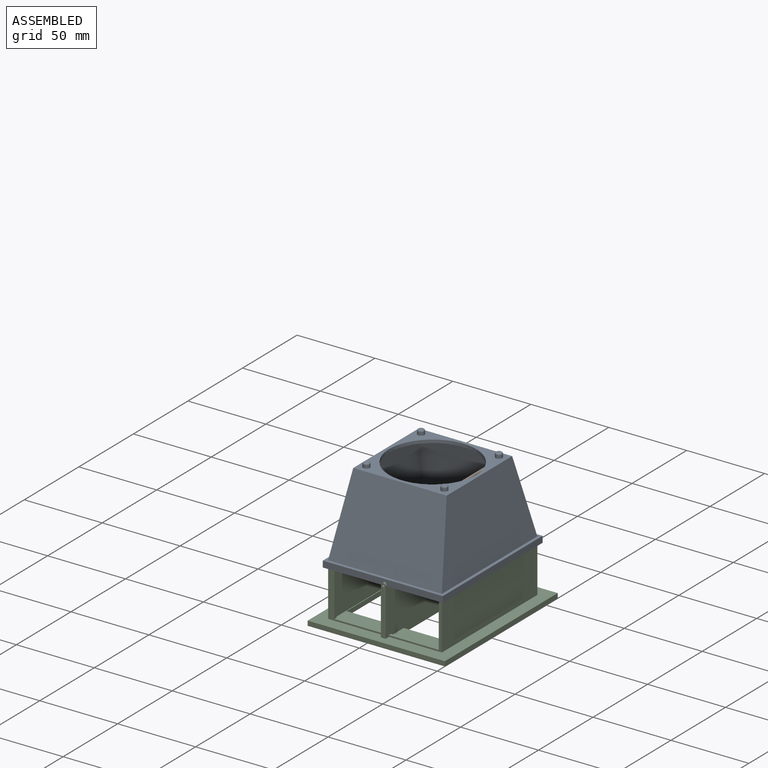
[diagram: assembled view]
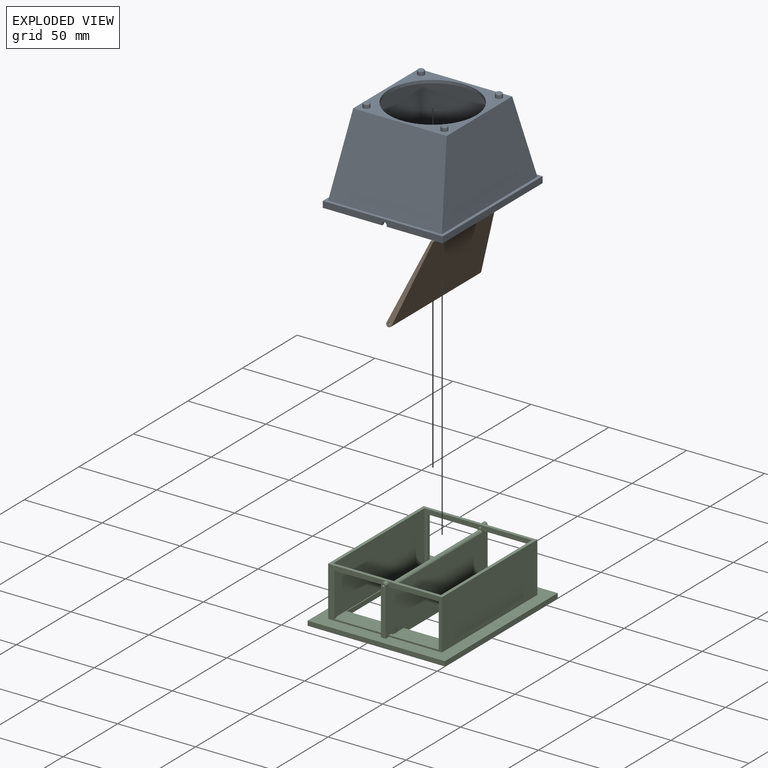
[diagram: exploded view]
GUIDED TOUR — MATED ASSEMBLY (Onshape document 1cd952b16f9e75bab7b66fbf, AutoMate assembly 1cd952b16f9e75bab7b66fbf_637cf7d2d420dbe34865fbb0_53619db082002d376659358c_default)

This assembly has 3 components, labeled P0..P2 below (a component is one placed occurrence of a part; the same part can appear more than once), held together by 2 mates. A mate is a constraint between two components; its type names the relative motion it leaves free:
  FASTENED — locks the two components together rigidly (no relative motion),
  REVOLUTE — leaves rotation about the listed axis free (a hinge).
Axis/direction vectors are unit vectors and 'through' points are millimeter coordinates, both in the assembly's world frame.

MATES
  1. FASTENED "Fastened 1": P2 <-> P0, direction (0.000, 0.000, 1.000) through (-4.52, -101.75, 11.74) mm
  2. REVOLUTE "Revolute 2": P1 <-> P2, axis (0.000, -1.000, 0.000) through (-40.02, -187.25, 10.24) mm

ASSEMBLY ORDER
  1. P2 — the base component [order verified]
  2. P1 [order verified]
  3. P0 [order verified]
Order-tag legend:
  [order verified] — this step's position reverses a verified removal order: the component was checked to insert without passing through the ones already placed.

Of the 3 components, 1 carries the full construction recipe — the FeatureScript program that regenerates the part's solid from scratch; the rest are supplied as boundary geometry only.
Each toured component is shown spotlighted twice — in the assembled view, then in the exploded view, where a leader line traces a displaced component back to its assembled socket (saturated green if recipe-attached, orange if geometry-only; every other component desaturated gray) — followed by its recipe or geometry summary and the mates that hold it.
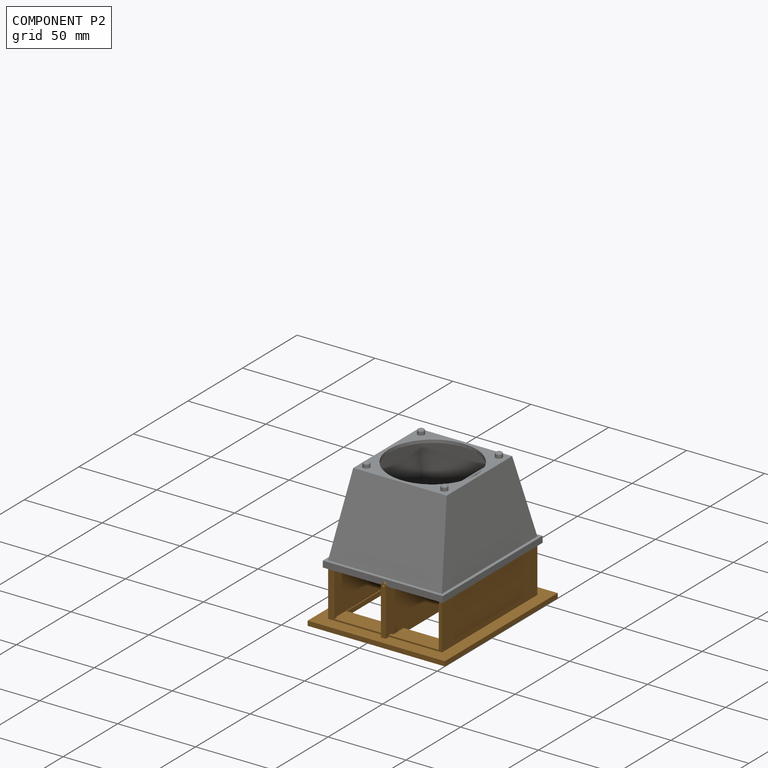
[diagram: component P2 — assembled]
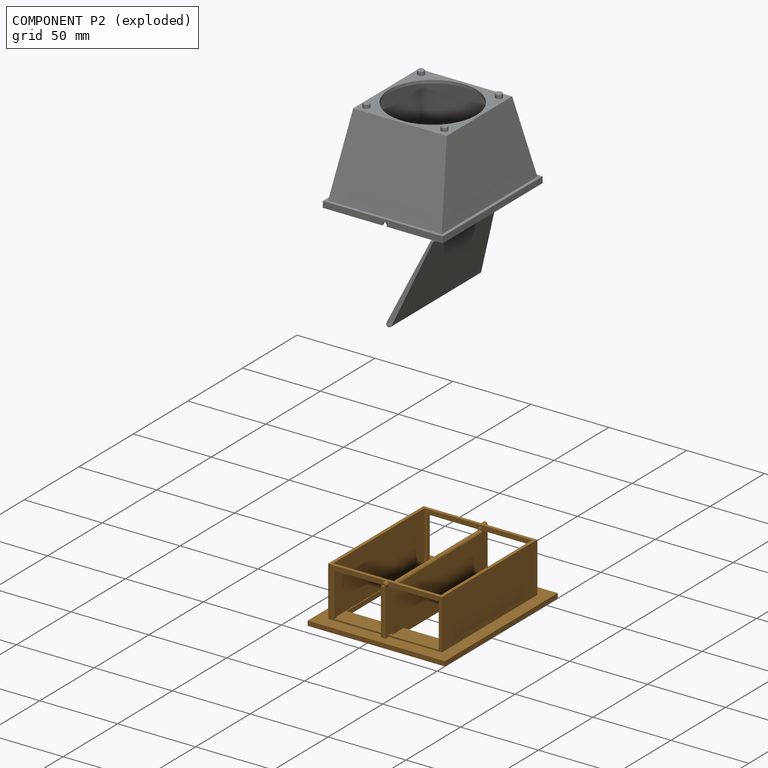
[diagram: component P2 — exploded]
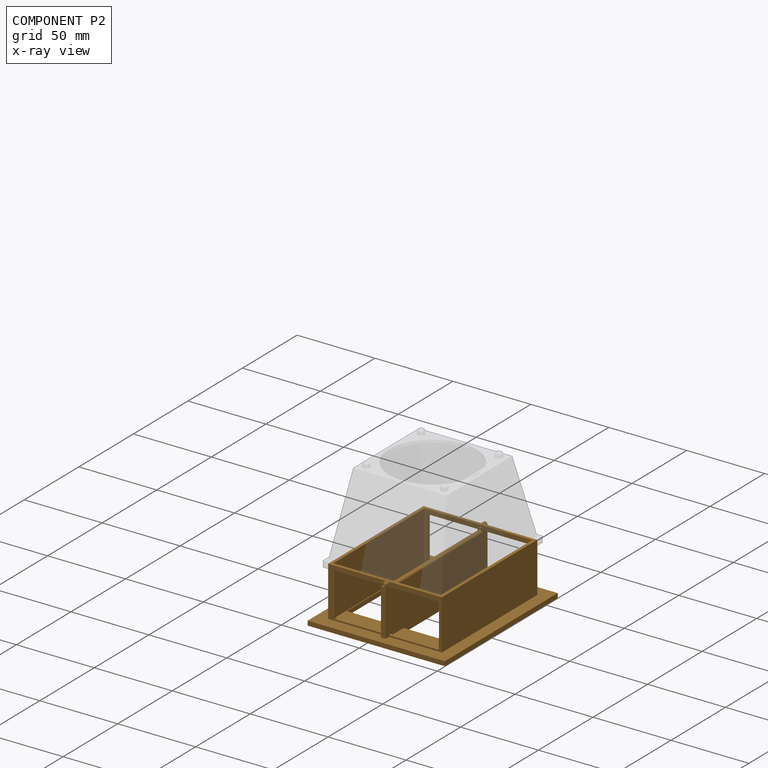
[diagram: component P2 — x-ray view]
COMPONENT P2 — geometry summary (no construction recipe available for this part):
  bounding box: 103.5 x 88.0 x 35.0 mm
  B-rep topology: 1 solid, 46 faces, 312 edges
  volume: 36117 mm^3 (11% of its bounding box)
  symmetry: mirror-symmetric across its y mid-plane
Held by: FASTENED mate "Fastened 1" to P0; REVOLUTE mate "Revolute 2" to P1.
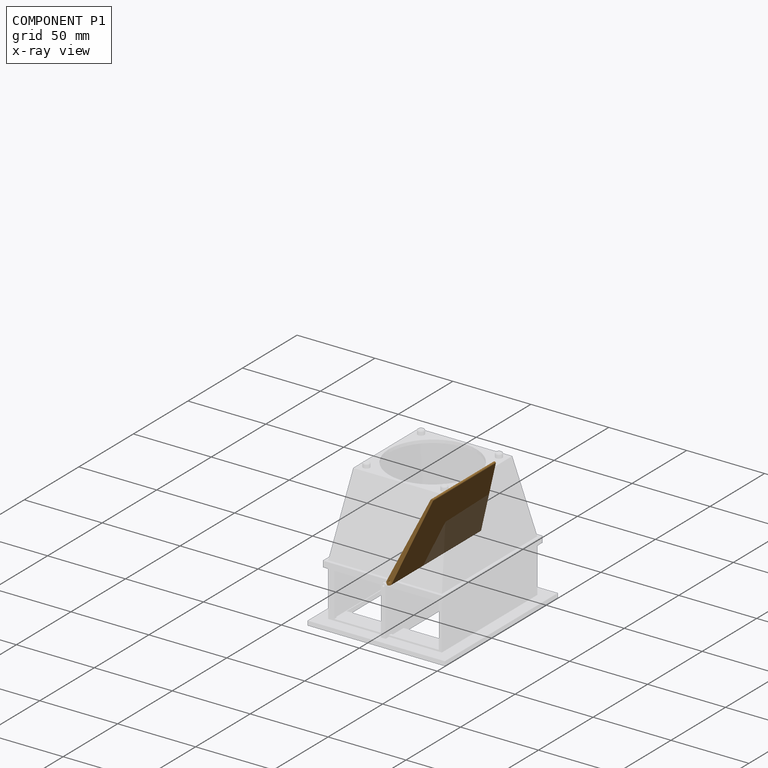
[diagram: component P1 — x-ray view]
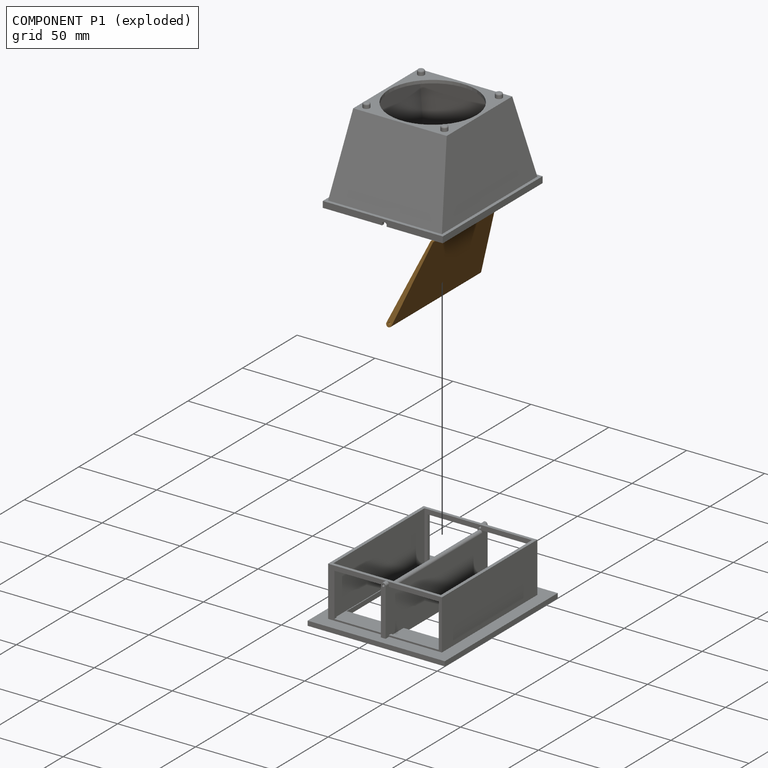
[diagram: component P1 — exploded]
COMPONENT P1 — geometry summary (no construction recipe available for this part):
  bounding box: 83.1 x 54.1 x 3.5 mm
  B-rep topology: 1 solid, 10 faces, 50 edges
  volume: 9443 mm^3 (60% of its bounding box)
  symmetry: 2-fold rotationally symmetric about the z axis; mirror-symmetric across its x mid-plane, y mid-plane
Held by: REVOLUTE mate "Revolute 2" to P2.
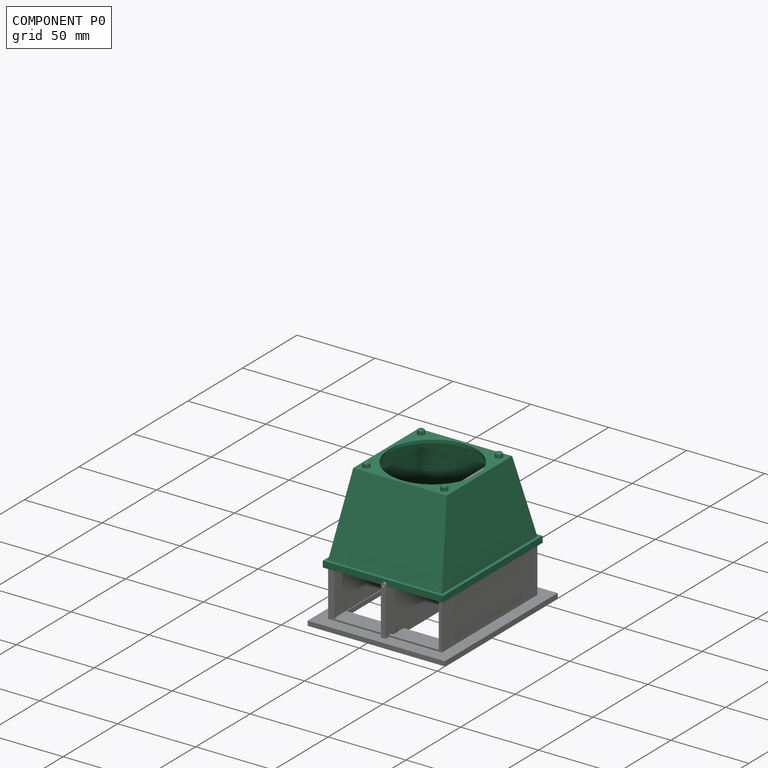
[diagram: component P0 — assembled]
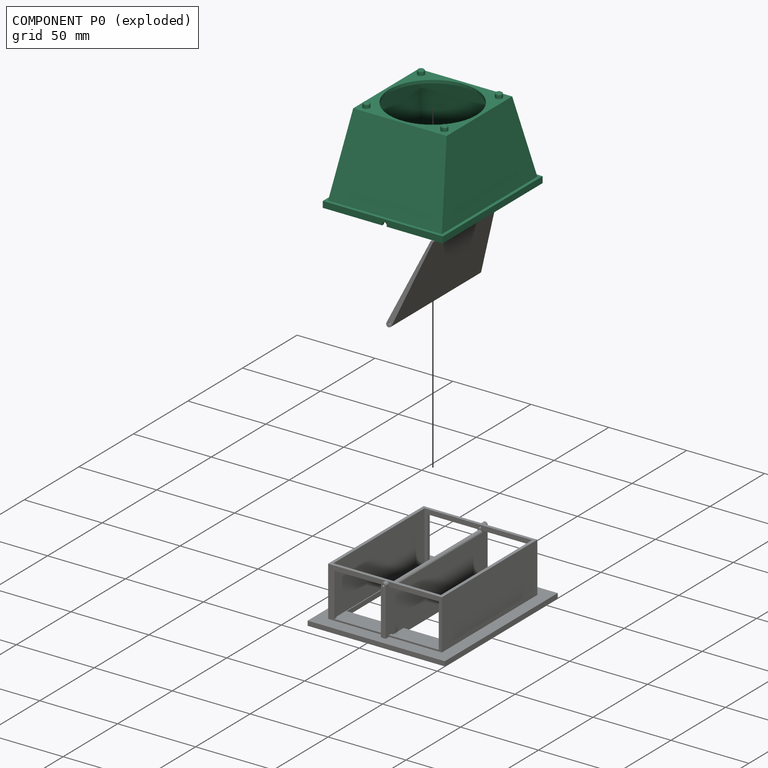
[diagram: component P0 — exploded]
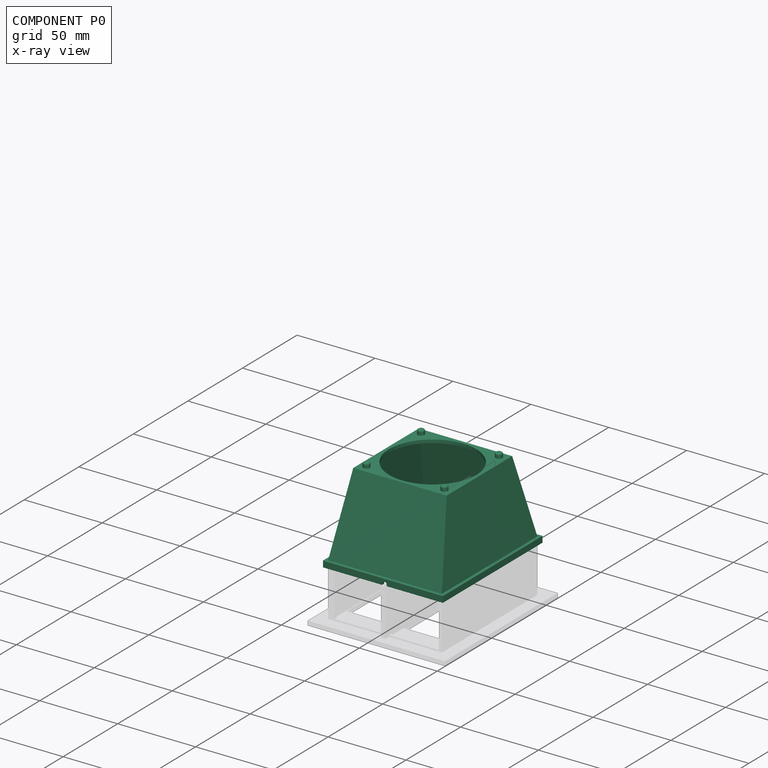
[diagram: component P0 — x-ray view]
COMPONENT P0 — recipe-attached (CADFS 00880265, mesh-verified: the recipe's output STEP matches this component's geometry to below the mesh-comparison resolution (tessellation chordal tolerance ~0.199 mm)).
Held by: FASTENED mate "Fastened 1" to P2.
Construction recipe (FeatureScript — the CAD program that rebuilds this solid; sketch coordinates are in the units given by the * unit suffixes, e.g. mm):

FeatureScript 1511;
import(path : "onshape/std/geometry.fs", version : "1511.0");
import(path : "onshape/std/common.fs", version : "1511.0");
const mm = millimeter;
const VERTEX = EntityType.VERTEX;
const EDGE = EntityType.EDGE;
const FACE = EntityType.FACE;
const BODY = EntityType.BODY;
function v(x, y){return vector(x, y);}
function OD(order){return orderDisambiguation(order);}
function OSD(set){return originalSetDisambiguation(set);}
function TD(topology){return topologyDisambiguation(topology);}
function TDD(query){return trueDependencyDisambiguation(query);}
function sQuery(a, b, c) {return sketchEntityQuery(a, b, c);}

annotation { "Feature Type Name" : "Feature", "Feature Type Description" : "" }
export const myFeature = defineFeature(function(context is Context, id is Id, definition is map)
    precondition{}
    {
        {
            var Q0;
            Q0=qCreatedBy(makeId("Top.planeOp"),FACE);
            var sketch = newSketch(context, id + "F0", { "sketchPlane" : qUnion([Q0])});
            skCircle(sketch, "E0", {"center": v(0, 0) * mm, "radius": 28 * mm});
            skLineSegment(sketch, "E1.bottom", {"start": v(-30, 30) * mm, "end": v(30, 30) * mm});
            skLineSegment(sketch, "E1.top", {"start": v(-30, -30) * mm, "end": v(30, -30) * mm});
            skLineSegment(sketch, "E1.left", {"start": v(-30, 30) * mm, "end": v(-30, -30) * mm});
            skLineSegment(sketch, "E1.right", {"start": v(30, 30) * mm, "end": v(30, -30) * mm});
            skLineSegment(sketch, "E2.bottom", {"start": v(-34.5, 41.75) * mm, "end": v(34.5, 41.75) * mm});
            skLineSegment(sketch, "E2.top", {"start": v(-34.5, -41.75) * mm, "end": v(34.5, -41.75) * mm});
            skLineSegment(sketch, "E2.left", {"start": v(-34.5, 41.75) * mm, "end": v(-34.5, -41.75) * mm});
            skLineSegment(sketch, "E2.right", {"start": v(34.5, 41.75) * mm, "end": v(34.5, -41.75) * mm});
            skLineSegment(sketch, "E3.bottom", {"start": v(-36.5, -43.75) * mm, "end": v(36.5, -43.75) * mm});
            skLineSegment(sketch, "E3.top", {"start": v(-36.5, 43.75) * mm, "end": v(36.5, 43.75) * mm});
            skLineSegment(sketch, "E3.left", {"start": v(-36.5, -43.75) * mm, "end": v(-36.5, 43.75) * mm});
            skLineSegment(sketch, "E3.right", {"start": v(36.5, -43.75) * mm, "end": v(36.5, 43.75) * mm});
            skLineSegment(sketch, "E4.bottom", {"start": v(-38.5, 45.75) * mm, "end": v(38.5, 45.75) * mm});
            skLineSegment(sketch, "E4.top", {"start": v(-38.5, -45.75) * mm, "end": v(38.5, -45.75) * mm});
            skLineSegment(sketch, "E4.left", {"start": v(-38.5, 45.75) * mm, "end": v(-38.5, -45.75) * mm});
            skLineSegment(sketch, "E4.right", {"start": v(38.5, 45.75) * mm, "end": v(38.5, -45.75) * mm});
            skCircle(sketch, "E5", {"center": v(-25, 25) * mm, "radius": 2.12 * mm});
            skCircle(sketch, "E6.1.0", {"center": v(-25, -25) * mm, "radius": 2.12 * mm});
            skCircle(sketch, "E6.2.0", {"center": v(25, -25) * mm, "radius": 2.12 * mm});
            skCircle(sketch, "E6.3.0", {"center": v(25, 25) * mm, "radius": 2.12 * mm});
            skSolve(sketch);
        }
        {
            var Q0;
            Q0=makeQuery(id+"F0.imprint","IMPRINT",FACE,{"disambiguationData":[TD([[makeQuery(id+"F0.imprint","IMPRINT",EDGE,{"derivedFrom":sQuery(id+"F0.wireOp",EDGE,"E2.bottom")}),1.0]])]});
            extrude(context, id + "F1", {"entities" : qUnion([Q0]), "depth" : 2 * mm, "offsetDistance" : 25 * mm});
        }
        {
            var Q0;
            Q0=makeQuery(id+"F0.imprint","IMPRINT",FACE,{"disambiguationData":[TD([[makeQuery(id+"F0.imprint","IMPRINT",EDGE,{"derivedFrom":sQuery(id+"F0.wireOp",EDGE,"E0")}),-1.0]])]});
            var Q1;
            Q1=makeQuery(id+"F0.imprint","IMPRINT",FACE,{"disambiguationData":[TD([[makeQuery(id+"F0.imprint","IMPRINT",EDGE,{"derivedFrom":sQuery(id+"F0.wireOp",EDGE,"E6.3.0")}),1.0]])]});
            var Q2;
            Q2=makeQuery(id+"F0.imprint","IMPRINT",FACE,{"disambiguationData":[TD([[makeQuery(id+"F0.imprint","IMPRINT",EDGE,{"derivedFrom":sQuery(id+"F0.wireOp",EDGE,"E5")}),1.0]])]});
            var Q3;
            Q3=makeQuery(id+"F0.imprint","IMPRINT",FACE,{"disambiguationData":[TD([[makeQuery(id+"F0.imprint","IMPRINT",EDGE,{"derivedFrom":sQuery(id+"F0.wireOp",EDGE,"E6.1.0")}),1.0]])]});
            var Q4;
            Q4=makeQuery(id+"F0.imprint","IMPRINT",FACE,{"disambiguationData":[TD([[makeQuery(id+"F0.imprint","IMPRINT",EDGE,{"derivedFrom":sQuery(id+"F0.wireOp",EDGE,"E6.2.0")}),1.0]])]});
            extrude(context, id + "F2", {"entities" : qUnion([Q0, Q1, Q2, Q3, Q4]), "operationType" : NewBodyOperationType.ADD, "depth" : 52 * mm, "offsetDistance" : 25 * mm, "hasSecondDirection" : true, "secondDirectionOppositeDirection" : false, "secondDirectionDepth" : 50 * mm});
        }
        {
            var Q0;
            Q0=makeQuery(id+"F2.opExtrude","SWEPT_FACE",FACE,{"disambiguationData":[OSD([sQuery(id+"F0.wireOp",EDGE,"E1.bottom")])]});
            var Q1;
            Q1=makeQuery(id+"F1.opExtrude","SWEPT_FACE",FACE,{"disambiguationData":[OSD([sQuery(id+"F0.wireOp",EDGE,"E3.top")])]});
            loft(context, id + "F3", {"operationType" : NewBodyOperationType.ADD, "sheetProfilesArray" : [{ "sheetProfileEntities" : qUnion([Q0]) }, { "sheetProfileEntities" : qUnion([Q1]) }]});
        }
        {
            var Q0;
            Q0=makeQuery(id+"F2.opExtrude","SWEPT_FACE",FACE,{"disambiguationData":[OSD([sQuery(id+"F0.wireOp",EDGE,"E1.right")])]});
            var Q1;
            Q1=makeQuery(id+"F1.opExtrude","SWEPT_FACE",FACE,{"disambiguationData":[OSD([sQuery(id+"F0.wireOp",EDGE,"E3.right")])]});
            loft(context, id + "F4", {"operationType" : NewBodyOperationType.ADD, "sheetProfilesArray" : [{ "sheetProfileEntities" : qUnion([Q0]) }, { "sheetProfileEntities" : qUnion([Q1]) }]});
        }
        {
            var Q0;
            Q0=makeQuery(id+"F1.opExtrude","SWEPT_FACE",FACE,{"disambiguationData":[OSD([sQuery(id+"F0.wireOp",EDGE,"E3.left")])]});
            var Q1;
            Q1=makeQuery(id+"F2.opExtrude","SWEPT_FACE",FACE,{"disambiguationData":[OSD([sQuery(id+"F0.wireOp",EDGE,"E1.left")])]});
            loft(context, id + "F5", {"operationType" : NewBodyOperationType.ADD, "sheetProfilesArray" : [{ "sheetProfileEntities" : qUnion([Q0]) }, { "sheetProfileEntities" : qUnion([Q1]) }]});
        }
        {
            var Q0;
            Q0=makeQuery(id+"F2.opExtrude","SWEPT_FACE",FACE,{"disambiguationData":[OSD([sQuery(id+"F0.wireOp",EDGE,"E1.top")])]});
            var Q1;
            Q1=makeQuery(id+"F1.opExtrude","SWEPT_FACE",FACE,{"disambiguationData":[OSD([sQuery(id+"F0.wireOp",EDGE,"E3.bottom")])]});
            loft(context, id + "F6", {"operationType" : NewBodyOperationType.ADD, "sheetProfilesArray" : [{ "sheetProfileEntities" : qUnion([Q0]) }, { "sheetProfileEntities" : qUnion([Q1]) }]});
        }
        {
            var Q0;
            Q0=makeQuery(id+"F0.imprint","IMPRINT",FACE,{"disambiguationData":[TD([[makeQuery(id+"F0.imprint","IMPRINT",EDGE,{"derivedFrom":sQuery(id+"F0.wireOp",EDGE,"E3.bottom")}),-1.0]])]});
            extrude(context, id + "F7", {"entities" : qUnion([Q0]), "operationType" : NewBodyOperationType.ADD, "oppositeDirection" : true, "depth" : 2 * mm, "offsetDistance" : 25 * mm, "hasSecondDirection" : true, "secondDirectionOppositeDirection" : false, "secondDirectionDepth" : 2 * mm});
        }
        {
            var Q0;
            Q0=makeQuery(id+"F7.opExtrude","SWEPT_FACE",FACE,{"disambiguationData":[OSD([sQuery(id+"F0.wireOp",EDGE,"E4.top")])]});
            var sketch = newSketch(context, id + "F8", { "sketchPlane" : qUnion([Q0])});
            skArc(sketch, "E7", {"start": v(2.5, -1.25) * mm, "mid": v(1, 0.25) * mm, "end": v(-0.5, -1.25) * mm});
            skLineSegment(sketch, "E8", {"start": v(2.5, -1.25) * mm, "end": v(2.5, -2) * mm});
            skPoint(sketch, "E9.end.orphan", {"position": v(1, -2) * mm});
            skPoint(sketch, "E10.center.orphan", {"position": v(0, -1.25) * mm});
            skPoint(sketch, "E11.start.orphan", {"position": v(-1, -1.25) * mm});
            skLineSegment(sketch, "E12", {"start": v(-0.5, -1.25) * mm, "end": v(-0.5, -2) * mm});
            skSolve(sketch);
        }
        {
            var Q0;
            Q0=makeQuery(id+"F8.imprint","IMPRINT",FACE,{"disambiguationData":[TD([[makeQuery(id+"F8.imprint","IMPRINT",EDGE,{"derivedFrom":sQuery(id+"F8.wireOp",EDGE,"E7")}),1.0]])]});
            extrude(context, id + "F9", {"entities" : qUnion([Q0]), "operationType" : NewBodyOperationType.REMOVE, "endBound" : BoundingType.THROUGH_ALL, "oppositeDirection" : true, "depth" : 25 * mm, "offsetDistance" : 25 * mm});
        }
        {
            var Q0;
            Q0=makeQuery(id+"F0.imprint","IMPRINT",FACE,{"disambiguationData":[TD([[makeQuery(id+"F0.imprint","IMPRINT",EDGE,{"derivedFrom":sQuery(id+"F0.wireOp",EDGE,"E6.3.0")}),1.0]])]});
            var Q1;
            Q1=makeQuery(id+"F0.imprint","IMPRINT",FACE,{"disambiguationData":[TD([[makeQuery(id+"F0.imprint","IMPRINT",EDGE,{"derivedFrom":sQuery(id+"F0.wireOp",EDGE,"E5")}),1.0]])]});
            var Q2;
            Q2=makeQuery(id+"F0.imprint","IMPRINT",FACE,{"disambiguationData":[TD([[makeQuery(id+"F0.imprint","IMPRINT",EDGE,{"derivedFrom":sQuery(id+"F0.wireOp",EDGE,"E6.1.0")}),1.0]])]});
            var Q3;
            Q3=makeQuery(id+"F0.imprint","IMPRINT",FACE,{"disambiguationData":[TD([[makeQuery(id+"F0.imprint","IMPRINT",EDGE,{"derivedFrom":sQuery(id+"F0.wireOp",EDGE,"E6.2.0")}),1.0]])]});
            extrude(context, id + "F10", {"entities" : qUnion([Q0, Q1, Q2, Q3]), "operationType" : NewBodyOperationType.ADD, "depth" : 55 * mm, "offsetDistance" : 25 * mm, "hasSecondDirection" : true, "secondDirectionOppositeDirection" : false, "secondDirectionDepth" : 51 * mm});
        }
        {
            var Q0;
            Q0=makeQuery(id+"F10.opExtrude","CAP_EDGE",EDGE,{"disambiguationData":[OSD([sQuery(id+"F0.wireOp",EDGE,"E6.3.0")])],"isStart":false});
            var Q1;
            Q1=makeQuery(id+"F10.opExtrude","CAP_FACE",FACE,{"disambiguationData":[OSD([sQuery(id+"F0.wireOp",EDGE,"E6.2.0")])],"isStart":false});
            var Q2;
            Q2=makeQuery(id+"F10.opExtrude","CAP_FACE",FACE,{"disambiguationData":[OSD([sQuery(id+"F0.wireOp",EDGE,"E6.1.0")])],"isStart":false});
            var Q3;
            Q3=makeQuery(id+"F10.opExtrude","CAP_EDGE",EDGE,{"disambiguationData":[OSD([sQuery(id+"F0.wireOp",EDGE,"E5")])],"isStart":false});
            var Q4;
            {var subQ0=sQuery(id+"F0.wireOp",EDGE,"E1.right");var subQ1=sQuery(id+"F0.wireOp",EDGE,"E1.bottom");var subQ2=makeQuery(id+"F2.opExtrude","CAP_VERTEX",VERTEX,{"disambiguationData":[OSD([subQ1,subQ0])],"isStart":true});var subQ3=sQuery(id+"F0.wireOp",EDGE,"E1.top");var subQ4=sQuery(id+"F0.wireOp",EDGE,"E3.right");var subQ5=sQuery(id+"F0.wireOp",EDGE,"E3.top");var subQ6=sQuery(id+"F0.wireOp",EDGE,"E3.bottom");Q4=makeQuery(id+"F4.opLoft","SWEPT_FACE",FACE,{"disambiguationData":[OSD([subQ1,subQ3,subQ0,subQ6,subQ5,subQ4]),TDD([makeQuery(id+"F1.opExtrude","CAP_VERTEX",VERTEX,{"disambiguationData":[OSD([subQ6,subQ4])],"isStart":true}),makeQuery(id+"F1.opExtrude","CAP_VERTEX",VERTEX,{"disambiguationData":[OSD([subQ5,subQ4])],"isStart":true}),makeQuery(id+"F1.opExtrude","CAP_EDGE",EDGE,{"disambiguationData":[OSD([subQ4])],"isStart":true}),makeQuery(id+"F2.opExtrude","CAP_VERTEX",VERTEX,{"disambiguationData":[OSD([subQ3,subQ0])],"isStart":true}),makeQuery(id+"F2.opExtrude","CAP_EDGE",EDGE,{"disambiguationData":[OSD([subQ0])],"isStart":true}),makeQuery(id+"F3.boolean.opBoolean","MERGE",VERTEX,{"derivedFrom":[subQ2,makeQuery(id+"F3.opLoft","MID_CAP_VERTEX",VERTEX,{"disambiguationData":[OSD([subQ1,subQ0]),TDD([subQ2])],"capPos":0.0})]})])]});}
            fillet(context, id + "F11", {"entities" : qUnion([Q0, Q1, Q2, Q3, Q4]), "radius" : 1 * mm, "tangentPropagation" : true, "allowEdgeOverflow" : false});
        }
        {
            var Q0;
            {var subQ0=sQuery(id+"F0.wireOp",EDGE,"E1.right");var subQ1=sQuery(id+"F0.wireOp",EDGE,"E1.bottom");var subQ2=makeQuery(id+"F2.opExtrude","CAP_VERTEX",VERTEX,{"disambiguationData":[OSD([subQ1,subQ0])],"isStart":false});var subQ3=sQuery(id+"F0.wireOp",EDGE,"E3.right");var subQ4=sQuery(id+"F0.wireOp",EDGE,"E3.top");var subQ5=makeQuery(id+"F1.opExtrude","CAP_VERTEX",VERTEX,{"disambiguationData":[OSD([subQ4,subQ3])],"isStart":false});var subQ6=sQuery(id+"F0.wireOp",EDGE,"E1.top");var subQ7=sQuery(id+"F0.wireOp",EDGE,"E3.bottom");Q0=makeQuery(id+"F4.opLoft","SWEPT_FACE",FACE,{"disambiguationData":[OSD([subQ1,subQ6,subQ0,subQ7,subQ4,subQ3]),TDD([makeQuery(id+"F1.opExtrude","CAP_VERTEX",VERTEX,{"disambiguationData":[OSD([subQ7,subQ3])],"isStart":false}),makeQuery(id+"F1.opExtrude","CAP_EDGE",EDGE,{"disambiguationData":[OSD([subQ3])],"isStart":false}),makeQuery(id+"F2.opExtrude","CAP_VERTEX",VERTEX,{"disambiguationData":[OSD([subQ6,subQ0])],"isStart":false}),makeQuery(id+"F2.opExtrude","CAP_EDGE",EDGE,{"disambiguationData":[OSD([subQ0])],"isStart":false}),makeQuery(id+"F3.boolean.opBoolean","MERGE",VERTEX,{"derivedFrom":[subQ5,makeQuery(id+"F3.opLoft","MID_CAP_VERTEX",VERTEX,{"disambiguationData":[OSD([subQ4,subQ3]),TDD([subQ5])],"capPos":1.0})]}),makeQuery(id+"F3.boolean.opBoolean","MERGE",VERTEX,{"derivedFrom":[subQ2,makeQuery(id+"F3.opLoft","MID_CAP_VERTEX",VERTEX,{"disambiguationData":[OSD([subQ1,subQ0]),TDD([subQ2])],"capPos":0.0})]})])]});}
            extrude(context, id + "F12", {"entities" : qUnion([Q0]), "operationType" : NewBodyOperationType.ADD, "oppositeDirection" : true, "depth" : 1.5 * mm, "offsetDistance" : 25 * mm});
        }
        {
            var Q0;
            {var subQ0=sQuery(id+"F0.wireOp",EDGE,"E1.left");var subQ1=sQuery(id+"F0.wireOp",EDGE,"E1.top");var subQ2=makeQuery(id+"F2.opExtrude","CAP_VERTEX",VERTEX,{"disambiguationData":[OSD([subQ1,subQ0])],"isStart":false});var subQ3=sQuery(id+"F0.wireOp",EDGE,"E3.left");var subQ4=sQuery(id+"F0.wireOp",EDGE,"E3.bottom");var subQ5=makeQuery(id+"F1.opExtrude","CAP_VERTEX",VERTEX,{"disambiguationData":[OSD([subQ4,subQ3])],"isStart":false});var subQ6=sQuery(id+"F0.wireOp",EDGE,"E1.right");var subQ7=makeQuery(id+"F2.opExtrude","CAP_VERTEX",VERTEX,{"disambiguationData":[OSD([subQ1,subQ6])],"isStart":false});var subQ8=sQuery(id+"F0.wireOp",EDGE,"E3.right");var subQ9=makeQuery(id+"F1.opExtrude","CAP_VERTEX",VERTEX,{"disambiguationData":[OSD([subQ4,subQ8])],"isStart":false});Q0=makeQuery(id+"F6.opLoft","SWEPT_FACE",FACE,{"disambiguationData":[OSD([subQ1,subQ0,subQ6,subQ4,subQ3,subQ8]),TDD([makeQuery(id+"F1.opExtrude","CAP_EDGE",EDGE,{"disambiguationData":[OSD([subQ4])],"isStart":false}),makeQuery(id+"F2.opExtrude","CAP_EDGE",EDGE,{"disambiguationData":[OSD([subQ1])],"isStart":false}),makeQuery(id+"F4.boolean.opBoolean","MERGE",VERTEX,{"derivedFrom":[subQ9,makeQuery(id+"F4.opLoft","MID_CAP_VERTEX",VERTEX,{"disambiguationData":[OSD([subQ4,subQ8]),TDD([subQ9])],"capPos":1.0})]}),makeQuery(id+"F4.boolean.opBoolean","MERGE",VERTEX,{"derivedFrom":[subQ7,makeQuery(id+"F4.opLoft","MID_CAP_VERTEX",VERTEX,{"disambiguationData":[OSD([subQ1,subQ6]),TDD([subQ7])],"capPos":0.0})]}),makeQuery(id+"F5.boolean.opBoolean","MERGE",VERTEX,{"derivedFrom":[subQ5,makeQuery(id+"F5.opLoft","MID_CAP_VERTEX",VERTEX,{"disambiguationData":[OSD([subQ4,subQ3]),TDD([subQ5])],"capPos":0.0})]}),makeQuery(id+"F5.boolean.opBoolean","MERGE",VERTEX,{"derivedFrom":[subQ2,makeQuery(id+"F5.opLoft","MID_CAP_VERTEX",VERTEX,{"disambiguationData":[OSD([subQ1,subQ0]),TDD([subQ2])],"capPos":1.0})]})])]});}
            extrude(context, id + "F13", {"entities" : qUnion([Q0]), "operationType" : NewBodyOperationType.ADD, "oppositeDirection" : true, "depth" : 1.5 * mm, "offsetDistance" : 25 * mm});
        }
        {
            var Q0;
            {var subQ0=sQuery(id+"F0.wireOp",EDGE,"E1.left");var subQ1=sQuery(id+"F0.wireOp",EDGE,"E1.bottom");var subQ2=makeQuery(id+"F2.opExtrude","CAP_VERTEX",VERTEX,{"disambiguationData":[OSD([subQ1,subQ0])],"isStart":false});var subQ3=sQuery(id+"F0.wireOp",EDGE,"E3.left");var subQ4=sQuery(id+"F0.wireOp",EDGE,"E3.top");var subQ5=makeQuery(id+"F1.opExtrude","CAP_VERTEX",VERTEX,{"disambiguationData":[OSD([subQ4,subQ3])],"isStart":false});var subQ6=sQuery(id+"F0.wireOp",EDGE,"E1.top");var subQ7=sQuery(id+"F0.wireOp",EDGE,"E3.bottom");Q0=makeQuery(id+"F5.opLoft","SWEPT_FACE",FACE,{"disambiguationData":[OSD([subQ1,subQ6,subQ0,subQ7,subQ4,subQ3]),TDD([makeQuery(id+"F1.opExtrude","CAP_VERTEX",VERTEX,{"disambiguationData":[OSD([subQ7,subQ3])],"isStart":false}),makeQuery(id+"F1.opExtrude","CAP_EDGE",EDGE,{"disambiguationData":[OSD([subQ3])],"isStart":false}),makeQuery(id+"F2.opExtrude","CAP_VERTEX",VERTEX,{"disambiguationData":[OSD([subQ6,subQ0])],"isStart":false}),makeQuery(id+"F2.opExtrude","CAP_EDGE",EDGE,{"disambiguationData":[OSD([subQ0])],"isStart":false}),makeQuery(id+"F3.boolean.opBoolean","MERGE",VERTEX,{"derivedFrom":[subQ5,makeQuery(id+"F3.opLoft","MID_CAP_VERTEX",VERTEX,{"disambiguationData":[OSD([subQ4,subQ3]),TDD([subQ5])],"capPos":1.0})]}),makeQuery(id+"F3.boolean.opBoolean","MERGE",VERTEX,{"derivedFrom":[subQ2,makeQuery(id+"F3.opLoft","MID_CAP_VERTEX",VERTEX,{"disambiguationData":[OSD([subQ1,subQ0]),TDD([subQ2])],"capPos":0.0})]})])]});}
            extrude(context, id + "F14", {"entities" : qUnion([Q0]), "operationType" : NewBodyOperationType.ADD, "oppositeDirection" : true, "depth" : 1.5 * mm, "offsetDistance" : 25 * mm});
        }
        {
            var Q0;
            {var subQ0=sQuery(id+"F0.wireOp",EDGE,"E1.bottom");var subQ1=sQuery(id+"F0.wireOp",EDGE,"E1.right");var subQ2=sQuery(id+"F0.wireOp",EDGE,"E1.left");var subQ3=sQuery(id+"F0.wireOp",EDGE,"E3.top");var subQ4=sQuery(id+"F0.wireOp",EDGE,"E3.right");var subQ5=sQuery(id+"F0.wireOp",EDGE,"E3.left");Q0=makeQuery(id+"F3.opLoft","SWEPT_FACE",FACE,{"disambiguationData":[OSD([subQ0,subQ2,subQ1,subQ3,subQ5,subQ4]),TDD([makeQuery(id+"F1.opExtrude","CAP_VERTEX",VERTEX,{"disambiguationData":[OSD([subQ3,subQ5])],"isStart":false}),makeQuery(id+"F1.opExtrude","CAP_VERTEX",VERTEX,{"disambiguationData":[OSD([subQ3,subQ4])],"isStart":false}),makeQuery(id+"F1.opExtrude","CAP_EDGE",EDGE,{"disambiguationData":[OSD([subQ3])],"isStart":false}),makeQuery(id+"F2.opExtrude","CAP_VERTEX",VERTEX,{"disambiguationData":[OSD([subQ0,subQ2])],"isStart":false}),makeQuery(id+"F2.opExtrude","CAP_VERTEX",VERTEX,{"disambiguationData":[OSD([subQ0,subQ1])],"isStart":false}),makeQuery(id+"F2.opExtrude","CAP_EDGE",EDGE,{"disambiguationData":[OSD([subQ0])],"isStart":false})])]});}
            extrude(context, id + "F15", {"entities" : qUnion([Q0]), "operationType" : NewBodyOperationType.ADD, "oppositeDirection" : true, "depth" : 1.5 * mm, "offsetDistance" : 25 * mm});
        }
    });
PROVENANCE & LICENSES
Assembly (occurrences, transforms, mates, per-part STEP geometry): AutoMate dataset, Zenodo record 7776208, CC0.
Construction recipes: CADFS (HuggingFace VladPyatov/CADFS, CC-BY-4.0, layered over the ABC dataset), FeatureScript reconstruction programs keyed by ABC model id.
Join: ABC meta listings map ABC model id -> Onshape documentId; within a shared document, parts are matched by geometric signature (bounding-box dims + volume at 0.1% relative tolerance, exact B-rep face/solid counts).
Verification: 1 of this assembly's 3 components carries a recipe attachment, and every attachment is mesh-verified: the CADFS STEP and the AutoMate member STEP were compared as meshes in their shared local frame (symmetric sampled-point-to-mesh distance); worst across the 1 attachment: below the mesh-comparison resolution (tessellation chordal tolerance ~0.199 mm) on a 132 mm part.
Renders: orthographic iso camera (az 35 / el 25); the floor grid conveys scale (grid pitch printed in each image; no ruler). In the exploded view each component is displaced by its stored offset vector: the offsets alone carry the explosion direction (mate normal/axis signs are not orientation cues and do not encode it), and separation distances are assigned per mate-chain, not proportionally to assembly-order depth.
